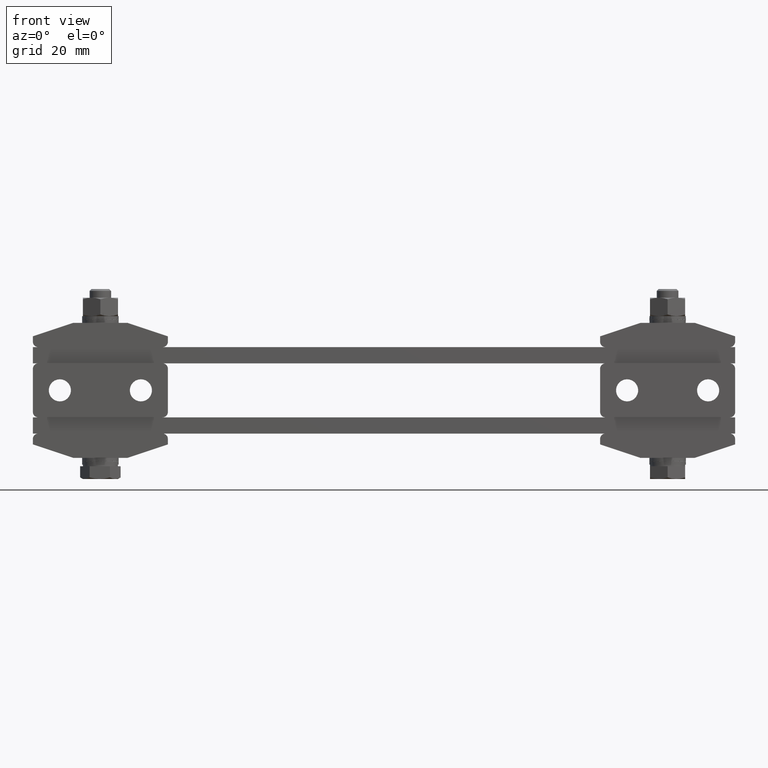
[diagram: clean part render]
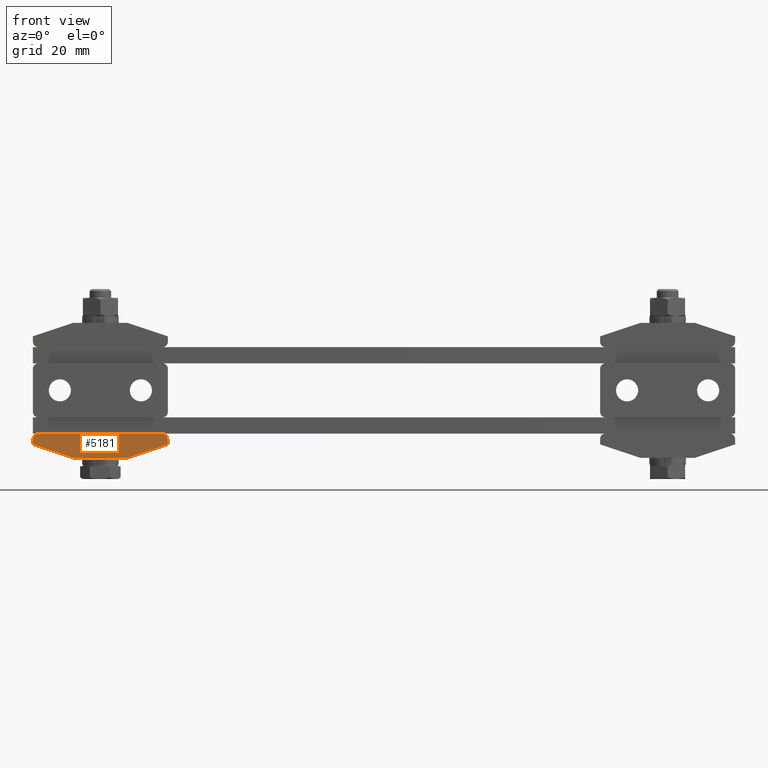
[diagram: same view with one face highlighted and labeled with its STEP entity id]
A machine part, front view. The second image highlights one B-rep face of the part: STEP entity #5181.
In plain terms, the highlighted planar face has unit normal (-0, 1, -0).
Its self-contained STEP definition (entity closure, byte-faithful):
#89 = VERTEX_POINT ( 'NONE', #17417 ) ;
#739 = VERTEX_POINT ( 'NONE', #3905 ) ;
#918 = VERTEX_POINT ( 'NONE', #18757 ) ;
#963 = CARTESIAN_POINT ( 'NONE',  ( -95.00000000000000000, -12.50000000000000000, -9.000000000000000000 ) ) ;
#1038 = EDGE_LOOP ( 'NONE', ( #16410, #19715, #20849, #6225, #11407, #10549, #5237, #19104 ) ) ;
#1142 = CARTESIAN_POINT ( 'NONE',  ( -130.0000000000000000, -12.50000000000000000, -2.000000000000000000 ) ) ;
#1908 = VECTOR ( 'NONE', #2068, 1000.000000000000000 ) ;
#2068 = DIRECTION ( 'NONE',  ( 1.000000000000000000, -3.883235470688639700E-031, -9.860761315262649800E-032 ) ) ;
#2223 = AXIS2_PLACEMENT_3D ( 'NONE', #4407, #15834, #12379 ) ;
#2274 = FACE_OUTER_BOUND ( 'NONE', #1038, .T. ) ;
#2866 = EDGE_CURVE ( 'NONE', #10091, #14752, #7361, .T. ) ;
#3905 = CARTESIAN_POINT ( 'NONE',  ( -115.0000000000000000, -12.50000000000000000, -9.000000000000000000 ) ) ;
#4407 = CARTESIAN_POINT ( 'NONE',  ( -82.00000000000000000, -12.50000000000000000, -2.000000000000000000 ) ) ;
#4882 = CARTESIAN_POINT ( 'NONE',  ( -128.0000000000000000, -12.50000000000000000, -5.204170427930419700E-015 ) ) ;
#4911 = CARTESIAN_POINT ( 'NONE',  ( -131.2000000000000200, -12.50000000000000000, -3.600000000000000100 ) ) ;
#4963 = DIRECTION ( 'NONE',  ( 0.0000000000000000000, 0.0000000000000000000, 1.000000000000000000 ) ) ;
#5043 = LINE ( 'NONE', #4911, #15067 ) ;
#5181 = ADVANCED_FACE ( 'NONE', ( #2274 ), #20206, .F. ) ;
#5237 = ORIENTED_EDGE ( 'NONE', *, *, #19077, .T. ) ;
#5837 = EDGE_CURVE ( 'NONE', #918, #739, #5043, .T. ) ;
#6012 = LINE ( 'NONE', #10296, #1908 ) ;
#6225 = ORIENTED_EDGE ( 'NONE', *, *, #13941, .T. ) ;
#6819 = VERTEX_POINT ( 'NONE', #1142 ) ;
#7076 = EDGE_CURVE ( 'NONE', #17593, #19931, #6012, .T. ) ;
#7157 = CARTESIAN_POINT ( 'NONE',  ( -80.00000000000000000, -12.50000000000000000, -5.204170427930419700E-015 ) ) ;
#7233 = DIRECTION ( 'NONE',  ( -3.883235470688639700E-031, 1.000000000000000000, -6.162975822039160200E-033 ) ) ;
#7361 = LINE ( 'NONE', #14771, #18130 ) ;
#7805 = VECTOR ( 'NONE', #12900, 1000.000000000000000 ) ;
#8047 = DIRECTION ( 'NONE',  ( 0.9486832980505141000, -3.541785167728114500E-031, -0.3162277660168370500 ) ) ;
#8464 = EDGE_CURVE ( 'NONE', #89, #19931, #17009, .T. ) ;
#9497 = CARTESIAN_POINT ( 'NONE',  ( -130.0000000000000000, -12.50000000000000000, -5.204170427930419700E-015 ) ) ;
#9729 = DIRECTION ( 'NONE',  ( 3.883235470688639700E-031, -1.000000000000000000, -6.162975822039160200E-033 ) ) ;
#10091 = VERTEX_POINT ( 'NONE', #963 ) ;
#10296 = CARTESIAN_POINT ( 'NONE',  ( -130.0000000000000000, -12.50000000000000000, -5.204170427930419700E-015 ) ) ;
#10549 = ORIENTED_EDGE ( 'NONE', *, *, #5837, .T. ) ;
#10793 = AXIS2_PLACEMENT_3D ( 'NONE', #16930, #7233, #20273 ) ;
#11076 = CARTESIAN_POINT ( 'NONE',  ( -82.00000000000000000, -12.50000000000000000, -5.204170427930419700E-015 ) ) ;
#11407 = ORIENTED_EDGE ( 'NONE', *, *, #19512, .T. ) ;
#12042 = CARTESIAN_POINT ( 'NONE',  ( -80.00000000000000000, -12.50000000000000000, -4.000000000000000000 ) ) ;
#12379 = DIRECTION ( 'NONE',  ( 0.0000000000000000000, 0.0000000000000000000, 1.000000000000000000 ) ) ;
#12900 = DIRECTION ( 'NONE',  ( 1.201780285297634100E-031, -6.162975822039160200E-033, -1.000000000000000000 ) ) ;
#13208 = DIRECTION ( 'NONE',  ( 1.000000000000000000, -3.883235470688639700E-031, -9.860761315262649800E-032 ) ) ;
#13349 = CARTESIAN_POINT ( 'NONE',  ( -130.0000000000000000, -12.50000000000000000, -9.000000000000000000 ) ) ;
#13941 = EDGE_CURVE ( 'NONE', #17593, #6819, #15266, .T. ) ;
#14259 = LINE ( 'NONE', #13349, #17834 ) ;
#14752 = VERTEX_POINT ( 'NONE', #12042 ) ;
#14771 = CARTESIAN_POINT ( 'NONE',  ( -123.8000000000000000, -12.50000000000000000, -18.59999999999999800 ) ) ;
#14778 = LINE ( 'NONE', #9497, #7805 ) ;
#14878 = CARTESIAN_POINT ( 'NONE',  ( -128.0000000000000000, -12.50000000000000000, -2.000000000000000000 ) ) ;
#15067 = VECTOR ( 'NONE', #8047, 1000.000000000000100 ) ;
#15266 = CIRCLE ( 'NONE', #15686, 2.000000000000000000 ) ;
#15570 = DIRECTION ( 'NONE',  ( 1.201780285297634100E-031, -6.162975822039160200E-033, -1.000000000000000000 ) ) ;
#15686 = AXIS2_PLACEMENT_3D ( 'NONE', #14878, #9729, #4963 ) ;
#15834 = DIRECTION ( 'NONE',  ( 3.883235470688639700E-031, -1.000000000000000000, -6.162975822039160200E-033 ) ) ;
#16410 = ORIENTED_EDGE ( 'NONE', *, *, #16909, .F. ) ;
#16909 = EDGE_CURVE ( 'NONE', #89, #14752, #19984, .T. ) ;
#16930 = CARTESIAN_POINT ( 'NONE',  ( -130.0000000000000000, -12.50000000000000000, -5.204170427930419700E-015 ) ) ;
#17009 = CIRCLE ( 'NONE', #2223, 2.000000000000000000 ) ;
#17417 = CARTESIAN_POINT ( 'NONE',  ( -80.00000000000000000, -12.50000000000000000, -2.000000000000000000 ) ) ;
#17593 = VERTEX_POINT ( 'NONE', #4882 ) ;
#17834 = VECTOR ( 'NONE', #13208, 1000.000000000000000 ) ;
#18045 = DIRECTION ( 'NONE',  ( 0.9486832980505141000, -3.536007377894954500E-031, 0.3162277660168370500 ) ) ;
#18130 = VECTOR ( 'NONE', #18045, 1000.000000000000100 ) ;
#18757 = CARTESIAN_POINT ( 'NONE',  ( -130.0000000000000000, -12.50000000000000000, -4.000000000000000000 ) ) ;
#19077 = EDGE_CURVE ( 'NONE', #739, #10091, #14259, .T. ) ;
#19104 = ORIENTED_EDGE ( 'NONE', *, *, #2866, .T. ) ;
#19512 = EDGE_CURVE ( 'NONE', #6819, #918, #14778, .T. ) ;
#19715 = ORIENTED_EDGE ( 'NONE', *, *, #8464, .T. ) ;
#19931 = VERTEX_POINT ( 'NONE', #11076 ) ;
#19984 = LINE ( 'NONE', #7157, #20230 ) ;
#20206 = PLANE ( 'NONE',  #10793 ) ;
#20230 = VECTOR ( 'NONE', #15570, 1000.000000000000000 ) ;
#20273 = DIRECTION ( 'NONE',  ( -1.201780285297634100E-031, 6.162975822039160200E-033, 1.000000000000000000 ) ) ;
#20849 = ORIENTED_EDGE ( 'NONE', *, *, #7076, .F. ) ;